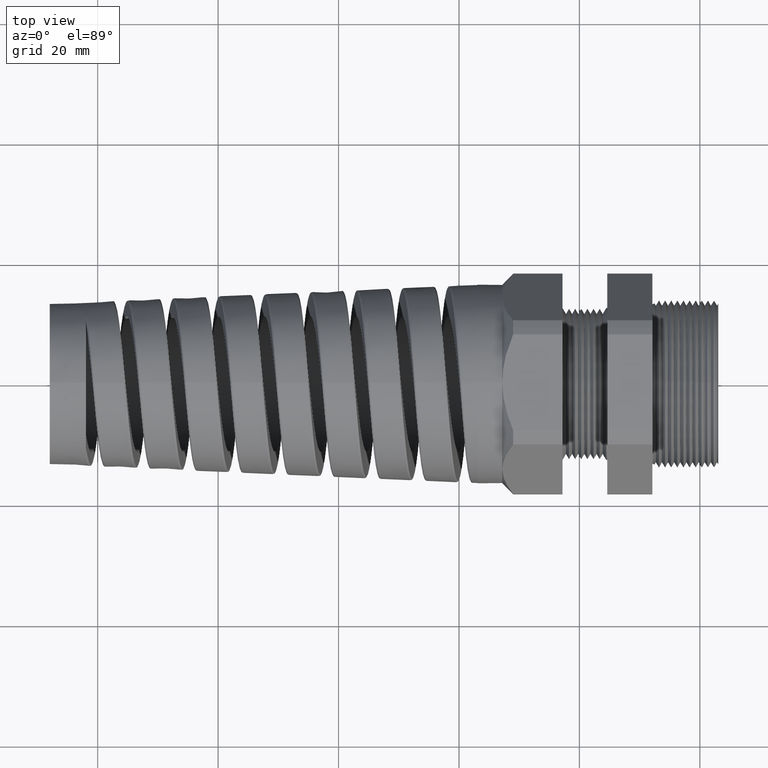
[diagram: clean part render]
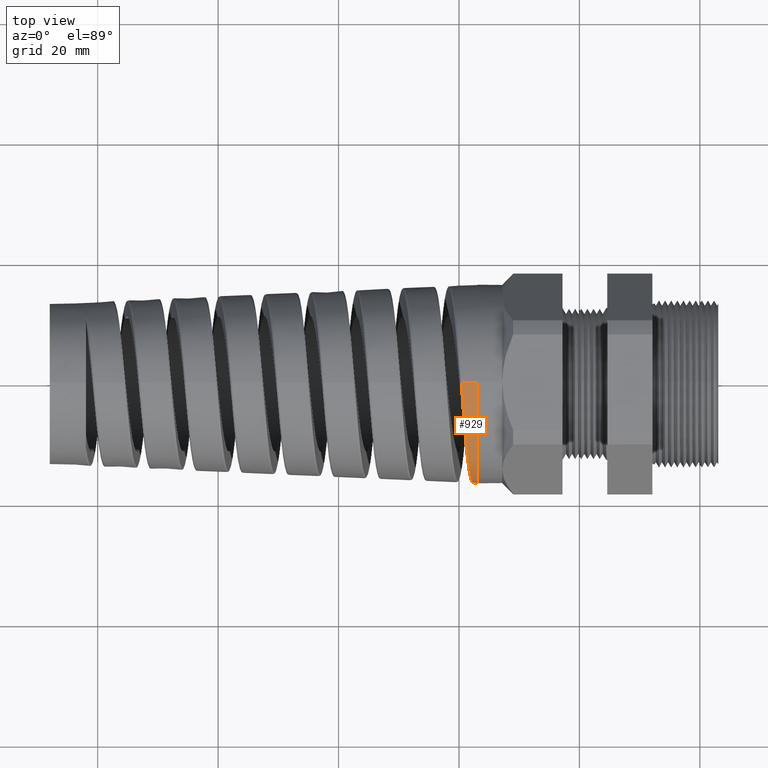
[diagram: same view with one face highlighted and labeled with its STEP entity id]
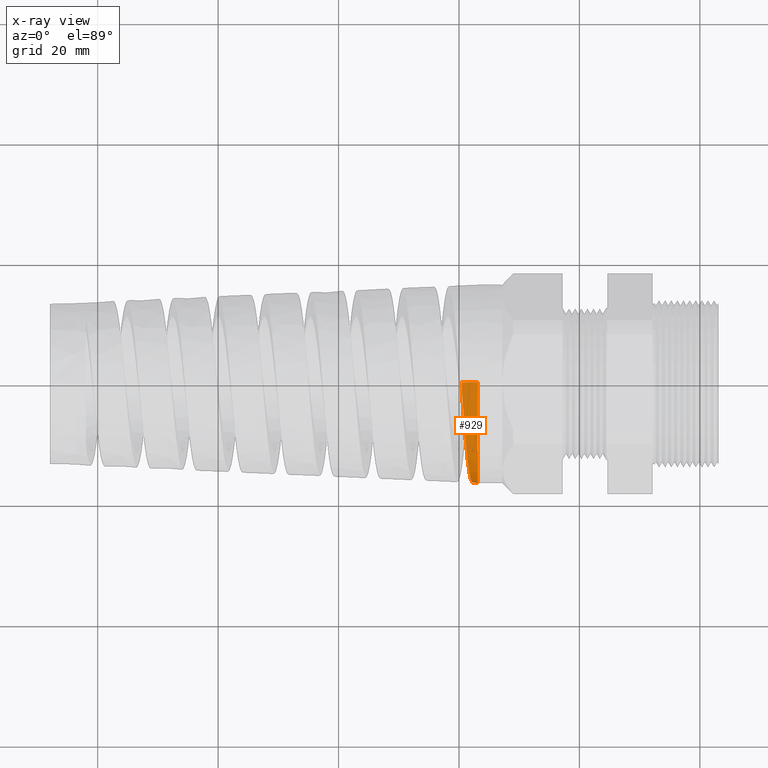
[diagram: x-ray of the same camera — body ghosted, the highlighted face saturated]
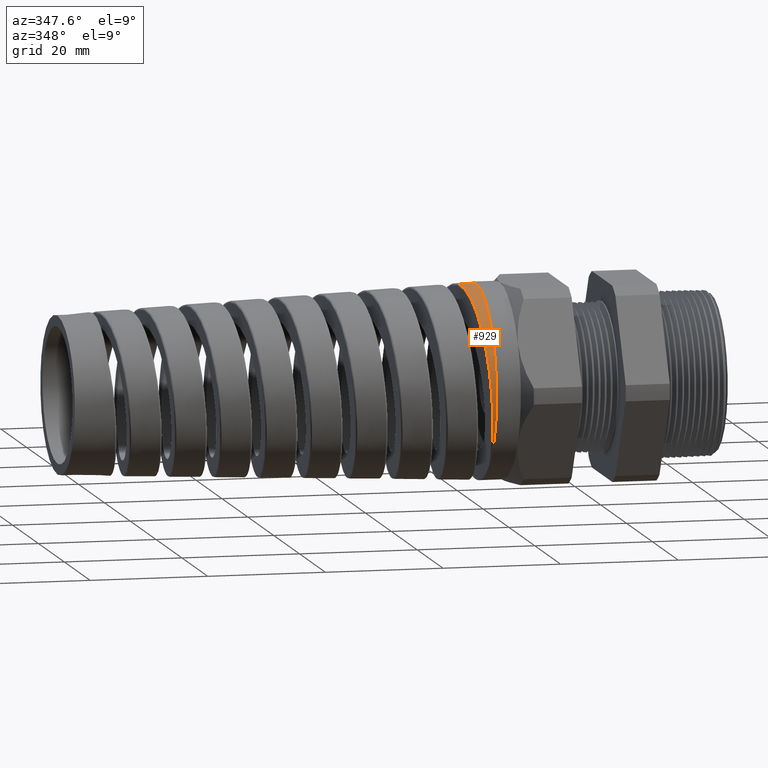
[diagram: same view with one face highlighted and labeled with its STEP entity id]
A machine part, top view. The second image highlights one B-rep face of the part: STEP entity #929.
The next image is the same camera in x-ray: the body ghosted, the highlighted face saturated — about 0% of this face is hidden behind the body in this view.
A second angle (auxiliary view) of the same face is appended — the face is thin or edge-on in the first view.
In plain terms, the highlighted conical surface has half-angle 2.5 deg.
Its self-contained STEP definition (entity closure, byte-faithful):
#275 = VERTEX_POINT ( 'NONE', #1421 ) ;
#277 = EDGE_CURVE ( 'NONE', #275, #278, #1420, .T. ) ;
#278 = VERTEX_POINT ( 'NONE', #1416 ) ;
#851 = EDGE_LOOP ( 'NONE', ( #852, #853, #856 ) ) ;
#852 = ORIENTED_EDGE ( 'NONE', *, *, #277, .F. ) ;
#853 = ORIENTED_EDGE ( 'NONE', *, *, #854, .T. ) ;
#854 = EDGE_CURVE ( 'NONE', #275, #855, #4753, .T. ) ;
#855 = VERTEX_POINT ( 'NONE', #4754 ) ;
#856 = ORIENTED_EDGE ( 'NONE', *, *, #857, .F. ) ;
#857 = EDGE_CURVE ( 'NONE', #278, #855, #4788, .T. ) ;
#929 = ADVANCED_FACE ( 'NONE', ( #5007 ), #5006, .T. ) ;
#1416 = CARTESIAN_POINT ( 'NONE',  ( -1.453597361040340100, 7.936893019473739300E-017, 0.6480964981086557700 ) ) ;
#1417 = DIRECTION ( 'NONE',  ( 0.9990482215818576900, 5.341834311772759500E-018, 0.04361938736533629800 ) ) ;
#1418 = VECTOR ( 'NONE', #1417, 39.37007874015748100 ) ;
#1419 = CARTESIAN_POINT ( 'NONE',  ( -1.409999999999999900, 7.960204194457794200E-017, 0.6499999999999999100 ) ) ;
#1420 = LINE ( 'NONE', #1419, #1418 ) ;
#1421 = CARTESIAN_POINT ( 'NONE',  ( -1.560572460696024100, -1.854166193730744100E-014, 0.6434258643899565300 ) ) ;
#4742 = CARTESIAN_POINT ( 'NONE',  ( -1.534882115733663400, -0.3303053904109898300, 0.5536880571346306500 ) ) ;
#4743 = CARTESIAN_POINT ( 'NONE',  ( -1.536007820454826400, -0.3171370046368656700, 0.5612752393745291700 ) ) ;
#4744 = CARTESIAN_POINT ( 'NONE',  ( -1.538244418559512800, -0.2904806054642628000, 0.5754137019062406400 ) ) ;
#4745 = CARTESIAN_POINT ( 'NONE',  ( -1.539358484420392700, -0.2769557156540546900, 0.5819883094202057400 ) ) ;
#4746 = CARTESIAN_POINT ( 'NONE',  ( -1.542696052504201300, -0.2358005429763966600, 0.6002507324984701600 ) ) ;
#4747 = CARTESIAN_POINT ( 'NONE',  ( -1.544915154288943400, -0.2075925711108670400, 0.6104841916710117600 ) ) ;
#4748 = CARTESIAN_POINT ( 'NONE',  ( -1.549385473165962400, -0.1496170490292056100, 0.6270159233715368900 ) ) ;
#4749 = CARTESIAN_POINT ( 'NONE',  ( -1.551649922170265800, -0.1196675919159702600, 0.6333136167487586300 ) ) ;
#4750 = CARTESIAN_POINT ( 'NONE',  ( -1.556122219486842900, -0.05995845697091042900, 0.6415294711885747300 ) ) ;
#4751 = CARTESIAN_POINT ( 'NONE',  ( -1.558344120142234800, -0.03001996352681476900, 0.6435231558396553600 ) ) ;
#4752 = CARTESIAN_POINT ( 'NONE',  ( -1.560572460696024100, -1.854166193730744100E-014, 0.6434258643899565300 ) ) ;
#4753 = B_SPLINE_CURVE_WITH_KNOTS ( 'NONE', 3,
 ( #4752, #4751, #4750, #4749, #4748, #4747, #4746, #4745, #4744, #4743, #4742, #4818, #4817, #4816, #4815, #4814, #4813, #4812, #4811, #4810, #4809, #4808, #4807, #4806, #4805, #4804, #4803, #4802, #4801, #4800, #4799, #4798, #4797, #4796, #4795, #4794, #4793, #4792, #4791, #4790 ),
 .UNSPECIFIED., .F., .F.,
 ( 4, 2, 2, 2, 2, 2, 2, 2, 2, 2, 2, 2, 2, 2, 2, 2, 2, 2, 2, 4 ),
 ( 0.7787471215816279500, 0.7810715983901767000, 0.7833960751987253400, 0.7857205520072740900, 0.7868827904115484100, 0.7880450288158227200, 0.7926939824329202200, 0.7938562208371945400, 0.7950184592414688600, 0.7973429360500176000, 0.7985051744542919200, 0.7996674128585662400, 0.8019918896671149900, 0.8043163664756636200, 0.8054786048799380500, 0.8066408432842123700, 0.8089653200927611200, 0.8101275584970354400, 0.8112897969013097600, 0.8159387505184071400 ),
 .UNSPECIFIED. ) ;
#4754 = CARTESIAN_POINT ( 'NONE',  ( -1.453597361040339900, -0.5083961139849611000, -0.4019483326818179500 ) ) ;
#4784 = DIRECTION ( 'NONE',  ( 0.0000000000000000000, 0.0000000000000000000, 1.000000000000000000 ) ) ;
#4785 = DIRECTION ( 'NONE',  ( 1.000000000000000000, 0.0000000000000000000, 0.0000000000000000000 ) ) ;
#4786 = CARTESIAN_POINT ( 'NONE',  ( -1.453597361040340100, 0.0000000000000000000, 0.0000000000000000000 ) ) ;
#4787 = AXIS2_PLACEMENT_3D ( 'NONE', #4786, #4785, #4784 ) ;
#4788 = CIRCLE ( 'NONE', #4787, 0.6480964981086557700 ) ;
#4790 = CARTESIAN_POINT ( 'NONE',  ( -1.453597361040339900, -0.5083961139849611000, -0.4019483326818179500 ) ) ;
#4791 = CARTESIAN_POINT ( 'NONE',  ( -1.458079200528113800, -0.5459552887976705200, -0.3541268657263054700 ) ) ;
#4792 = CARTESIAN_POINT ( 'NONE',  ( -1.462459500088298500, -0.5760542996923893000, -0.3022150037821244000 ) ) ;
#4793 = CARTESIAN_POINT ( 'NONE',  ( -1.468025159439153100, -0.6045355965899954500, -0.2323305109453279200 ) ) ;
#4794 = CARTESIAN_POINT ( 'NONE',  ( -1.469146683303083500, -0.6097820695532549800, -0.2180497920168499900 ) ) ;
#4795 = CARTESIAN_POINT ( 'NONE',  ( -1.471386069555036500, -0.6192368969378218000, -0.1892061265645255400 ) ) ;
#4796 = CARTESIAN_POINT ( 'NONE',  ( -1.472499887781180800, -0.6234320337969472300, -0.1746968911667121600 ) ) ;
#4797 = CARTESIAN_POINT ( 'NONE',  ( -1.475832150892678400, -0.6344597822810683600, -0.1309140099001916700 ) ) ;
#4798 = CARTESIAN_POINT ( 'NONE',  ( -1.478041267346781300, -0.6397420247214787900, -0.1013863701575380400 ) ) ;
#4799 = CARTESIAN_POINT ( 'NONE',  ( -1.481367419829918300, -0.6445788487176992200, -0.05659158237165282100 ) ) ;
#4800 = CARTESIAN_POINT ( 'NONE',  ( -1.482478283607304300, -0.6456748630621997900, -0.04157580329477792600 ) ) ;
#4801 = CARTESIAN_POINT ( 'NONE',  ( -1.484709868067601600, -0.6468146508124568200, -0.01137307519968980400 ) ) ;
#4802 = CARTESIAN_POINT ( 'NONE',  ( -1.485835060396884800, -0.6468548629395497500, 0.003874401635809661000 ) ) ;
#4803 = CARTESIAN_POINT ( 'NONE',  ( -1.489192160270201400, -0.6453713462938809300, 0.04930820487568329800 ) ) ;
#4804 = CARTESIAN_POINT ( 'NONE',  ( -1.491408407572873500, -0.6422735746198577900, 0.07922236826810448400 ) ) ;
#4805 = CARTESIAN_POINT ( 'NONE',  ( -1.495841535499651500, -0.6319880395595595100, 0.1383200586509126800 ) ) ;
#4806 = CARTESIAN_POINT ( 'NONE',  ( -1.498058031964611300, -0.6248002276561983600, 0.1675036059503188200 ) ) ;
#4807 = CARTESIAN_POINT ( 'NONE',  ( -1.501414289887501100, -0.6108651796446743500, 0.2107132756986423400 ) ) ;
#4808 = CARTESIAN_POINT ( 'NONE',  ( -1.502541594040581700, -0.6056734803833474500, 0.2250605920856828300 ) ) ;
#4809 = CARTESIAN_POINT ( 'NONE',  ( -1.504778786447776900, -0.5943818173840427200, 0.2531337742600147100 ) ) ;
#4810 = CARTESIAN_POINT ( 'NONE',  ( -1.505892252710416800, -0.5882698068681887500, 0.2669066809769382600 ) ) ;
#4811 = CARTESIAN_POINT ( 'NONE',  ( -1.509225823157572800, -0.5685636298349899800, 0.3074497023872558300 ) ) ;
#4812 = CARTESIAN_POINT ( 'NONE',  ( -1.511439125200584500, -0.5536058053980085200, 0.3334477917563709000 ) ) ;
#4813 = CARTESIAN_POINT ( 'NONE',  ( -1.514778111348349200, -0.5284308728159160500, 0.3708919226129781000 ) ) ;
#4814 = CARTESIAN_POINT ( 'NONE',  ( -1.515894265292879100, -0.5195812465823836900, 0.3831135512574798100 ) ) ;
#4815 = CARTESIAN_POINT ( 'NONE',  ( -1.518138348931514300, -0.5009443308253201900, 0.4070245514954599100 ) ) ;
#4816 = CARTESIAN_POINT ( 'NONE',  ( -1.519265942158740000, -0.4911549983640493000, 0.4187074285740548500 ) ) ;
#4817 = CARTESIAN_POINT ( 'NONE',  ( -1.524857648340266300, -0.4406361024202001800, 0.4748657610666043300 ) ) ;
#4818 = CARTESIAN_POINT ( 'NONE',  ( -1.529255736191948300, -0.3947079189652647500, 0.5134719850115817600 ) ) ;
#5001 = DIRECTION ( 'NONE',  ( 0.0000000000000000000, 0.0000000000000000000, -1.000000000000000000 ) ) ;
#5002 = DIRECTION ( 'NONE',  ( 1.000000000000000000, 0.0000000000000000000, 0.0000000000000000000 ) ) ;
#5003 = CARTESIAN_POINT ( 'NONE',  ( -1.409999999999999900, 0.0000000000000000000, 0.0000000000000000000 ) ) ;
#5004 = AXIS2_PLACEMENT_3D ( 'NONE', #5003, #5002, #5001 ) ;
#5006 = CONICAL_SURFACE ( 'NONE', #5004, 0.6499999999999999100, 0.04363323129985853500 ) ;
#5007 = FACE_OUTER_BOUND ( 'NONE', #851, .T. ) ;